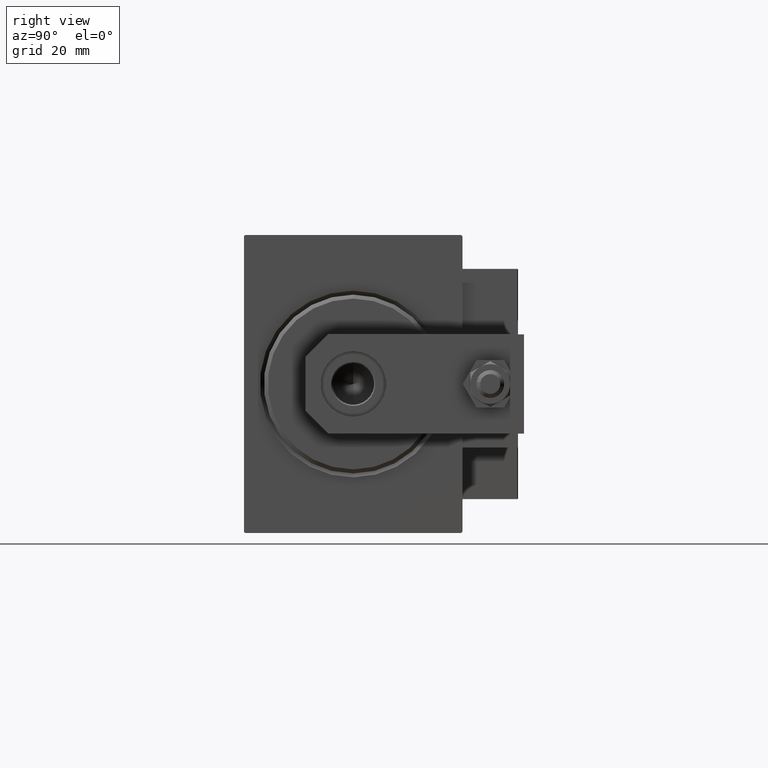
[diagram: clean part render]
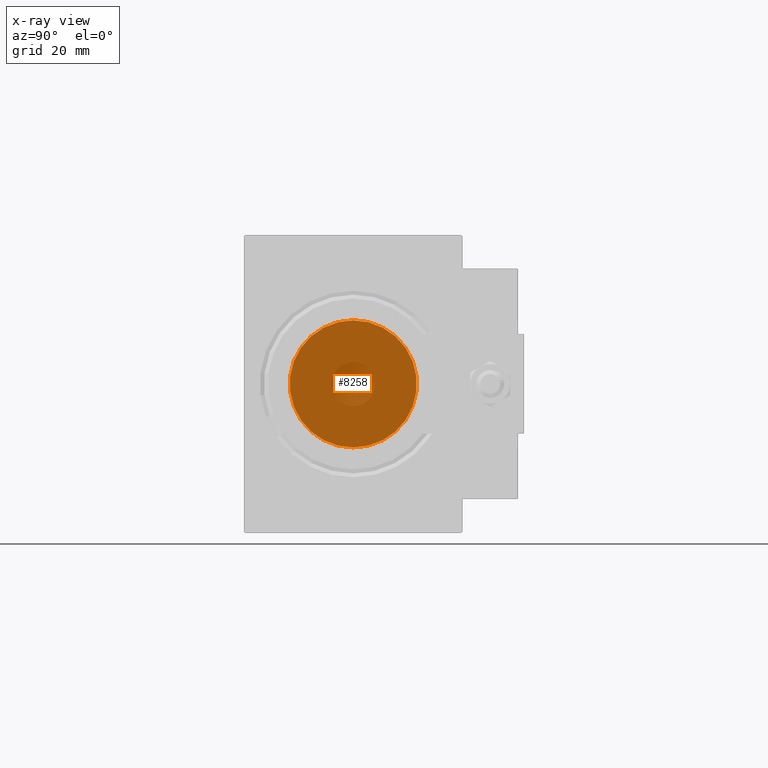
[diagram: x-ray — body ghosted, one internal face saturated and labeled with its STEP entity id]
A machine part, right view, then the same camera in x-ray: the body is ghosted and one INTERNAL B-rep face — a face not visible from any outside direction — is saturated and labeled: STEP entity #8258.
In plain terms, the highlighted planar face has unit normal (1, 0, -0).
Its self-contained STEP definition (entity closure, byte-faithful):
#2 = EDGE_LOOP ( 'NONE', ( #27650, #30525 ) ) ;
#2677 = VERTEX_POINT ( 'NONE', #15719 ) ;
#4247 = DIRECTION ( 'NONE',  ( -1.000000000000000000, 0.000000000000000000, 0.000000000000000000 ) ) ;
#8258 = ADVANCED_FACE ( 'NONE', ( #27652 ), #31193, .T. ) ;
#8505 = CARTESIAN_POINT ( 'NONE',  ( 65.00000000000000000, 0.000000000000000000, 0.000000000000000000 ) ) ;
#13000 = DIRECTION ( 'NONE',  ( -1.000000000000000000, 0.000000000000000000, 0.000000000000000000 ) ) ;
#15445 = CIRCLE ( 'NONE', #47613, 16.00000000000000000 ) ;
#15719 = CARTESIAN_POINT ( 'NONE',  ( 65.00000000000000000, 0.000000000000000000, 16.00000000000000000 ) ) ;
#19614 = DIRECTION ( 'NONE',  ( 0.000000000000000000, 0.000000000000000000, 1.000000000000000000 ) ) ;
#25996 = EDGE_CURVE ( 'NONE', #2677, #32346, #28141, .T. ) ;
#27650 = ORIENTED_EDGE ( 'NONE', *, *, #25996, .T. ) ;
#27652 = FACE_OUTER_BOUND ( 'NONE', #2, .T. ) ;
#28141 = CIRCLE ( 'NONE', #34578, 16.00000000000000000 ) ;
#30525 = ORIENTED_EDGE ( 'NONE', *, *, #30544, .T. ) ;
#30544 = EDGE_CURVE ( 'NONE', #32346, #2677, #15445, .T. ) ;
#31193 = PLANE ( 'NONE',  #47947 ) ;
#32346 = VERTEX_POINT ( 'NONE', #44600 ) ;
#34578 = AXIS2_PLACEMENT_3D ( 'NONE', #35947, #48047, #36439 ) ;
#35947 = CARTESIAN_POINT ( 'NONE',  ( 65.00000000000000000, 0.000000000000000000, 0.000000000000000000 ) ) ;
#36439 = DIRECTION ( 'NONE',  ( 0.000000000000000000, 0.000000000000000000, 1.000000000000000000 ) ) ;
#39438 = DIRECTION ( 'NONE',  ( 0.000000000000000000, 0.000000000000000000, 1.000000000000000000 ) ) ;
#44600 = CARTESIAN_POINT ( 'NONE',  ( 65.00000000000000000, 1.959434878635765131E-15, -16.00000000000000000 ) ) ;
#47499 = CARTESIAN_POINT ( 'NONE',  ( 65.00000000000000000, 0.000000000000000000, 0.000000000000000000 ) ) ;
#47613 = AXIS2_PLACEMENT_3D ( 'NONE', #47499, #13000, #39438 ) ;
#47947 = AXIS2_PLACEMENT_3D ( 'NONE', #8505, #4247, #19614 ) ;
#48047 = DIRECTION ( 'NONE',  ( -1.000000000000000000, 0.000000000000000000, 0.000000000000000000 ) ) ;